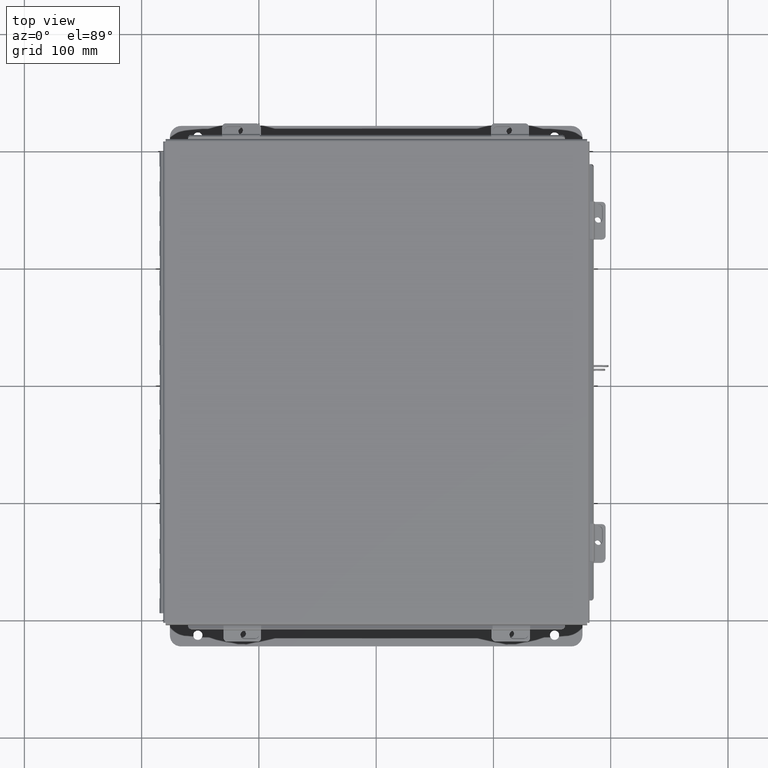
[diagram: clean part render]
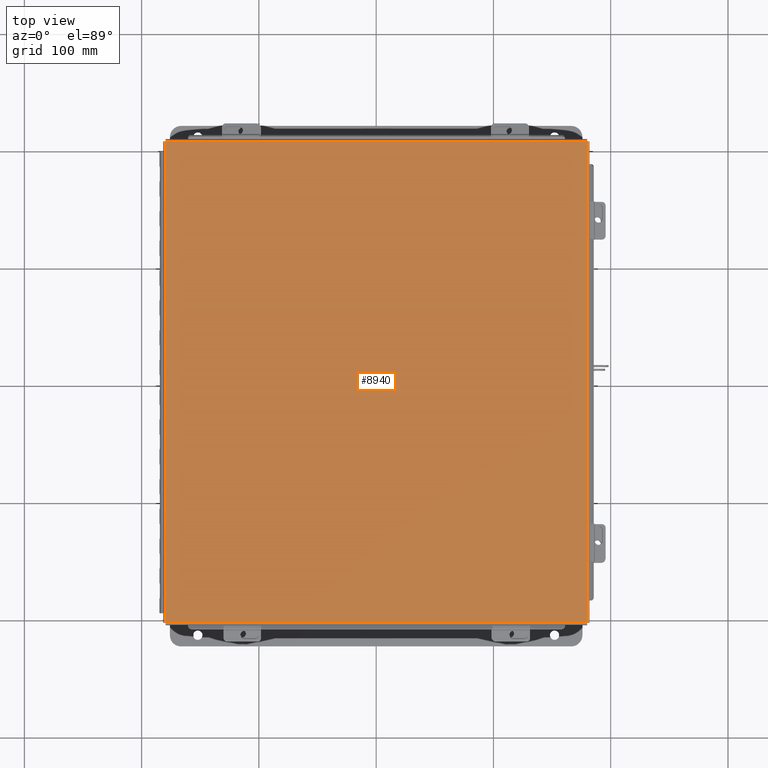
[diagram: same view with one face highlighted and labeled with its STEP entity id]
A machine part, top view. The second image highlights one B-rep face of the part: STEP entity #8940.
In plain terms, the highlighted planar face has unit normal (-0, -0, 1).
Its self-contained STEP definition (entity closure, byte-faithful):
#303 = VECTOR ( 'NONE', #18720, 39.37007874015748100 ) ;
#405 = ORIENTED_EDGE ( 'NONE', *, *, #14917, .T. ) ;
#454 = CARTESIAN_POINT ( 'NONE',  ( 7.074478932188133800, -8.068549999999998300, -0.07470000000000015500 ) ) ;
#503 = EDGE_CURVE ( 'NONE', #7872, #7064, #12163, .T. ) ;
#2148 = ORIENTED_EDGE ( 'NONE', *, *, #7115, .T. ) ;
#2262 = VECTOR ( 'NONE', #9711, 39.37007874015748100 ) ;
#3027 = ORIENTED_EDGE ( 'NONE', *, *, #19106, .T. ) ;
#3036 = CARTESIAN_POINT ( 'NONE',  ( 7.068550000000001000, -8.068549999999998300, -0.07470000000000015500 ) ) ;
#3568 = LINE ( 'NONE', #17371, #15967 ) ;
#5131 = CARTESIAN_POINT ( 'NONE',  ( -7.068549999999999200, 8.068550000000000100, -0.07470000000000015500 ) ) ;
#5395 = ORIENTED_EDGE ( 'NONE', *, *, #503, .T. ) ;
#6220 = DIRECTION ( 'NONE',  ( -2.298495783748903900E-033, 1.000000000000000000, -8.208677865577646300E-017 ) ) ;
#6484 = DIRECTION ( 'NONE',  ( 1.000000000000000000, 2.258600338820354400E-033, -0.0000000000000000000 ) ) ;
#6501 = DIRECTION ( 'NONE',  ( -0.0000000000000000000, 0.0000000000000000000, -1.000000000000000000 ) ) ;
#7064 = VERTEX_POINT ( 'NONE', #3036 ) ;
#7115 = EDGE_CURVE ( 'NONE', #10798, #17291, #7435, .T. ) ;
#7435 = LINE ( 'NONE', #15524, #15712 ) ;
#7872 = VERTEX_POINT ( 'NONE', #13806 ) ;
#8940 = ADVANCED_FACE ( 'NONE', ( #11042 ), #9572, .T. ) ;
#9442 = CARTESIAN_POINT ( 'NONE',  ( -7.068549999999999200, -8.068549999999998300, -0.07469999999999907300 ) ) ;
#9572 = PLANE ( 'NONE',  #13102 ) ;
#9711 = DIRECTION ( 'NONE',  ( -1.000000000000000000, -2.258600338820354400E-033, -0.0000000000000000000 ) ) ;
#10798 = VERTEX_POINT ( 'NONE', #9442 ) ;
#11042 = FACE_OUTER_BOUND ( 'NONE', #18810, .T. ) ;
#12163 = LINE ( 'NONE', #15717, #303 ) ;
#12671 = CARTESIAN_POINT ( 'NONE',  ( -8.537024980200822600E-018, 0.0000000000000000000, -0.07470000000000015500 ) ) ;
#13102 = AXIS2_PLACEMENT_3D ( 'NONE', #12671, #6501, #17390 ) ;
#13806 = CARTESIAN_POINT ( 'NONE',  ( 7.068550000000001000, 8.068550000000000100, -0.07470000000000015500 ) ) ;
#14619 = LINE ( 'NONE', #454, #2262 ) ;
#14917 = EDGE_CURVE ( 'NONE', #7064, #10798, #14619, .T. ) ;
#15524 = CARTESIAN_POINT ( 'NONE',  ( -7.068549999999999200, -8.074478932188133800, -0.07469999999999907300 ) ) ;
#15712 = VECTOR ( 'NONE', #6220, 39.37007874015748100 ) ;
#15717 = CARTESIAN_POINT ( 'NONE',  ( 7.068550000000001000, 8.074478932188135600, -0.07470000000000015500 ) ) ;
#15967 = VECTOR ( 'NONE', #6484, 39.37007874015748100 ) ;
#17291 = VERTEX_POINT ( 'NONE', #5131 ) ;
#17371 = CARTESIAN_POINT ( 'NONE',  ( -7.074478932188132100, 8.068550000000000100, -0.07470000000000015500 ) ) ;
#17390 = DIRECTION ( 'NONE',  ( -1.000000000000000000, -2.258600338820354400E-033, 0.0000000000000000000 ) ) ;
#18720 = DIRECTION ( 'NONE',  ( -2.258600338820354400E-033, -1.000000000000000000, -0.0000000000000000000 ) ) ;
#18810 = EDGE_LOOP ( 'NONE', ( #3027, #5395, #405, #2148 ) ) ;
#19106 = EDGE_CURVE ( 'NONE', #17291, #7872, #3568, .T. ) ;